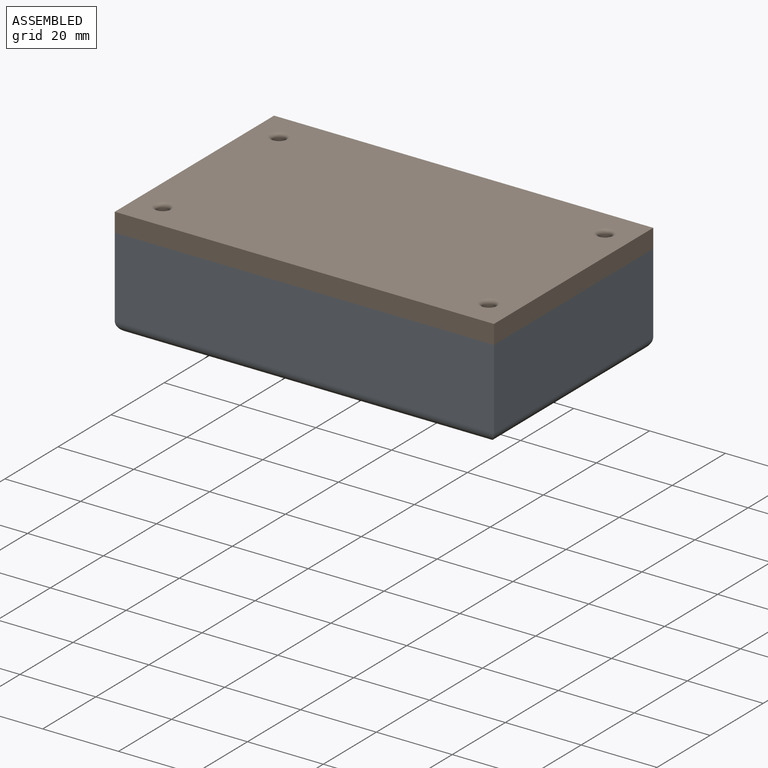
[diagram: assembled view]
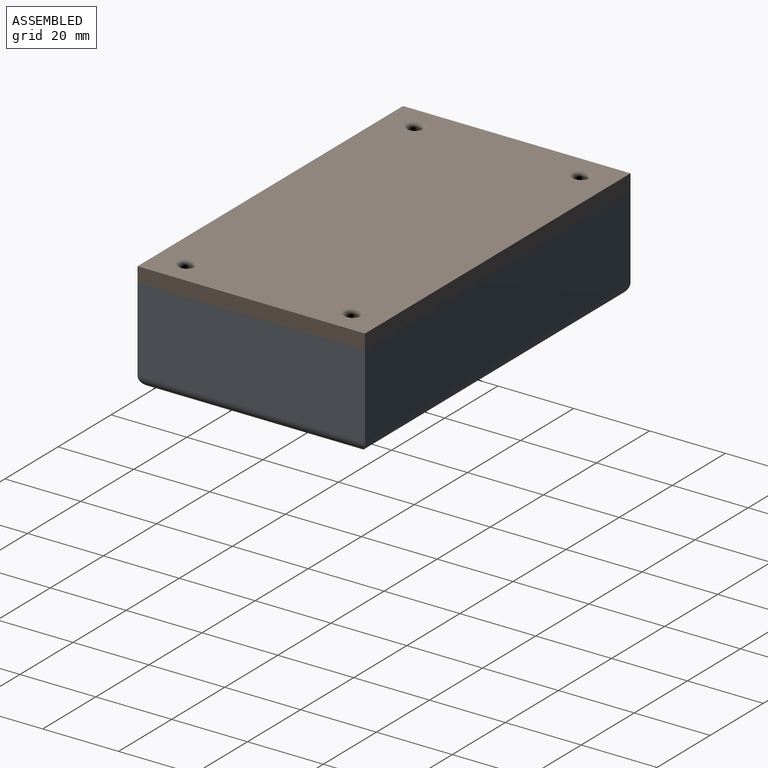
[diagram: assembled view, second angle]
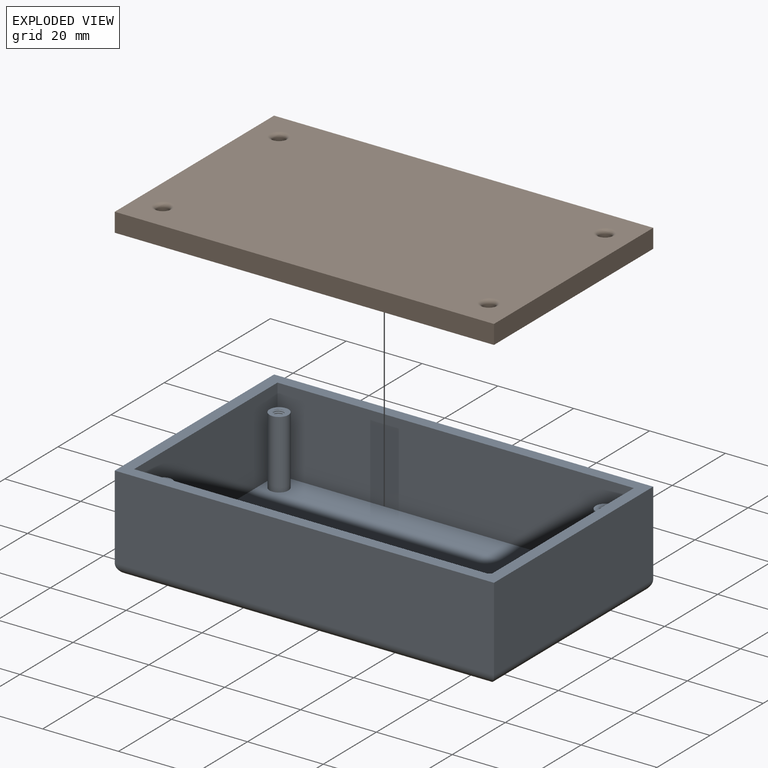
[diagram: exploded view]
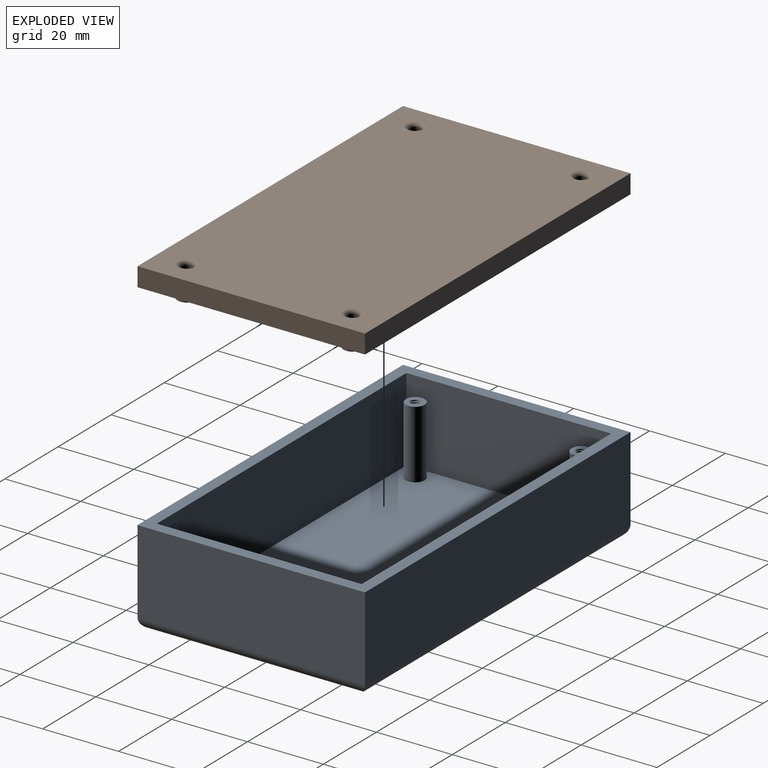
[diagram: exploded view, second angle]
FCSTD DOCUMENT  (FreeCAD 1.0R39109 (Git))
Label: Joystick_Part1
License: All rights reserved
LicenseURL: https://en.wikipedia.org/wiki/All_rights_reserved
objects: Sketcher::SketchObject×8, PartDesign::Pad×4, PartDesign::Pocket×3, PartDesign::Fillet×2, PartDesign::Body×2, App::Link×2, App::FeaturePython×2, PartDesign::Hole×1, Assembly::JointGroup×1, Assembly::AssemblyObject×1
note: 48 computed .brp shape members not serialized (recipe doc carries the construction recipe); baked Part::Feature solids carry a one-line shape summary decoded from their .brp

FEATURE [Sketcher::SketchObject] Sketch
  ArcFitTolerance = 1e-06
  AttachmentSupport = -> [XY_Plane]
  FullyConstrained = true
  MakeInternals = false
  MapMode = 5
  sketch-geometry (4):
    g0: LineSegment StartX=50 StartY=-30 StartZ=0 EndX=50 EndY=30 EndZ=0
    g1: LineSegment StartX=50 StartY=30 StartZ=0 EndX=-50 EndY=30 EndZ=0
    g2: LineSegment StartX=-50 StartY=30 StartZ=0 EndX=-50 EndY=-30 EndZ=0
    g3: LineSegment StartX=-50 StartY=-30 StartZ=0 EndX=50 EndY=-30 EndZ=0
  constraints (10):
    c: Coincident(g0,g1)
    c: Coincident(g1,g2)
    c: Coincident(g2,g3)
    c: Coincident(g3,g0)
    c: Vertical(g2)
    c: Horizontal(g3)
    c: Symmetric(g0,g1,g-2)
    c: Symmetric(g0,g0,g-1)
    c: DistanceX(g1,g1) = 100
    c: DistanceY(g0,g0) = 60
FEATURE [PartDesign::Pad] Pad
  Direction = (0,0,1)
  Length = 25
  Length2 = 10
  Profile = -> Sketch
  ReferenceAxis = -> Sketch [N_Axis]
  Refine = true
  Suppressed = false
  Type = 0
FEATURE [Sketcher::SketchObject] Sketch001
  ArcFitTolerance = 1e-06
  AttachmentSupport = -> [Pad]
  FullyConstrained = true
  MakeInternals = false
  MapMode = 5
  Placement = pos=(0,0,25) rot=(0,0,1;0rad)
  sketch-geometry (4):
    g0: LineSegment StartX=47 StartY=-27 StartZ=0 EndX=47 EndY=27 EndZ=0
    g1: LineSegment StartX=47 StartY=27 StartZ=0 EndX=-47 EndY=27 EndZ=0
    g2: LineSegment StartX=-47 StartY=27 StartZ=0 EndX=-47 EndY=-27 EndZ=0
    g3: LineSegment StartX=-47 StartY=-27 StartZ=0 EndX=47 EndY=-27 EndZ=0
  constraints (10):
    c: Coincident(g0,g1)
    c: Coincident(g1,g2)
    c: Coincident(g2,g3)
    c: Coincident(g3,g0)
    c: Vertical(g2)
    c: Horizontal(g3)
    c: Symmetric(g0,g1,g-2)
    c: Symmetric(g0,g0,g-1)
    c: DistanceX(g1,g1) = 94
    c: DistanceY(g0,g0) = 54
FEATURE [PartDesign::Pocket] Pocket
  BaseFeature = -> Pad
  Direction = (0,0,-1)
  Length = 22
  Length2 = 5
  Profile = -> Sketch001
  ReferenceAxis = -> Sketch001 [N_Axis]
  Refine = true
  Suppressed = false
  Type = 0
FEATURE [Sketcher::SketchObject] Sketch002
  ArcFitTolerance = 1e-06
  AttachmentSupport = -> [Pocket]
  ExternalGeometry = -> [Pocket]
  FullyConstrained = true
  MakeInternals = false
  MapMode = 5
  Placement = pos=(0,0,3) rot=(0,0,1;0rad)
  sketch-geometry (4):
    g0: Circle CenterX=-43 CenterY=21.8765 CenterZ=0 NormalX=0 NormalY=0 NormalZ=1 AngleXU=0 Radius=2.5
    g1: Circle CenterX=43 CenterY=21.8765 CenterZ=0 NormalX=0 NormalY=0 NormalZ=1 AngleXU=0 Radius=2.5
    g2: Circle CenterX=-43 CenterY=-21.8765 CenterZ=0 NormalX=0 NormalY=0 NormalZ=1 AngleXU=0 Radius=2.5
    g3: Circle CenterX=43 CenterY=-21.8765 CenterZ=0 NormalX=0 NormalY=0 NormalZ=1 AngleXU=0 Radius=2.5
  constraints (12):
    c: Diameter(g0) = 5
    c: DistanceX(g0,g-1) = 43
    c: Distance(g0,g-3) = 6.5
    c: Diameter(g1) = 5
    c: DistanceX(g-1,g1) = 43
    c: Distance(g1,g-4) = 6.5
    c: Diameter(g2) = 5
    c: Diameter(g3) = 5
    c: Distance(g2,g-3) = 6.5
    c: Distance(g2,g-2) = 43
    c: Distance(g3,g-4) = 6.5
    c: DistanceX(g-1,g3) = 43
FEATURE [PartDesign::Pad] Pad001
  BaseFeature = -> Pocket
  Direction = (0,0,1)
  Length = 18
  Length2 = 10
  Profile = -> Sketch002
  ReferenceAxis = -> Sketch002 [N_Axis]
  Refine = true
  Suppressed = false
  Type = 0
FEATURE [Sketcher::SketchObject] Sketch003
  ArcFitTolerance = 1e-06
  AttachmentSupport = -> [Pad001]
  ExternalGeometry = -> [Pad001]
  FullyConstrained = true
  MakeInternals = false
  MapMode = 45
  Placement = pos=(0,-1.4e-15,21) rot=(0,0,1;1.5708rad)
  sketch-geometry (4):
    g0: Circle CenterX=21.88 CenterY=-42.9956 CenterZ=0 NormalX=0 NormalY=0 NormalZ=1 AngleXU=0 Radius=1.6
    g1: Circle CenterX=-21.88 CenterY=42.9926 CenterZ=0 NormalX=0 NormalY=0 NormalZ=1 AngleXU=0 Radius=1.6
    g2: Circle CenterX=-21.88 CenterY=-42.9956 CenterZ=0 NormalX=0 NormalY=0 NormalZ=1 AngleXU=0 Radius=1.6
    g3: Circle CenterX=21.88 CenterY=43.0038 CenterZ=0 NormalX=0 NormalY=0 NormalZ=1 AngleXU=0 Radius=1.6
  constraints (12):
    c: Diameter(g0) = 3.2
    c: Diameter(g1) = 3.2
    c: Diameter(g2) = 3.2
    c: DistanceX(g-1,g0) = 21.88
    c: DistanceX(g2,g-1) = 21.88
    c: Distance(g2,g-4) = 6.5
    c: Distance(g0,g-4) = 6.5
    c: DistanceX(g-3,g1) = 5.12
    c: Diameter(g3) = 3.2
    c: DistanceX(g3,g-3) = 5.12
    c: Distance(g3,g-1) = 48.25
    c: Distance(g1,g-1) = 48.24
FEATURE [PartDesign::Hole] Hole
  BaseFeature = -> Pad001
  CustomThreadClearance = 0
  Depth = 4
  DepthType = 0
  Diameter = 2.52
  DrillForDepth = false
  DrillPoint = 0
  DrillPointAngle = 118
  HoleCutCountersinkAngle = 90
  HoleCutCustomValues = false
  HoleCutDepth = 0
  HoleCutDiameter = 6.1
  HoleCutType = 0
  ModelThread = true
  Profile = -> Sketch003
  Refine = true
  Suppressed = false
  Tapered = false
  TaperedAngle = 90
  ThreadClass = 0
  ThreadDepth = 4
  ThreadDepthType = 0
  ThreadDirection = 0
  ThreadFit = 0
  ThreadSize = 9
  ThreadType = 1
  Threaded = true
  UseCustomThreadClearance = false
FEATURE [PartDesign::Fillet] Fillet
  Base = -> Hole [Edge3,Edge6,Edge11,Edge9]
  BaseFeature = -> Hole
  Radius = 3
  Refine = true
  SupportTransform = false
  Suppressed = false
  UseAllEdges = false
FEATURE [PartDesign::Body] Body  label="BaseBody"
  AllowCompound = false
  Group = -> [Sketch,Pad,Sketch001,Pocket,Sketch002,Pad001,Sketch003,Hole,Fillet]
  Origin = -> Origin
  Tip = -> Fillet
FEATURE [Sketcher::SketchObject] Sketch004
  ArcFitTolerance = 1e-06
  AttachmentSupport = -> [XY_Plane001]
  FullyConstrained = true
  MakeInternals = false
  MapMode = 5
  sketch-geometry (4):
    g0: LineSegment StartX=50 StartY=-30 StartZ=0 EndX=50 EndY=30 EndZ=0
    g1: LineSegment StartX=50 StartY=30 StartZ=0 EndX=-50 EndY=30 EndZ=0
    g2: LineSegment StartX=-50 StartY=30 StartZ=0 EndX=-50 EndY=-30 EndZ=0
    g3: LineSegment StartX=-50 StartY=-30 StartZ=0 EndX=50 EndY=-30 EndZ=0
  constraints (10):
    c: Coincident(g0,g1)
    c: Coincident(g1,g2)
    c: Coincident(g2,g3)
    c: Coincident(g3,g0)
    c: Vertical(g2)
    c: Horizontal(g3)
    c: Distance(g0,g2) = 100
    c: Distance(g1,g3) = 60
    c: Symmetric(g0,g1,g-2)
    c: Symmetric(g0,g0,g-1)
FEATURE [PartDesign::Pad] Pad002
  Direction = (0,0,1)
  Length = 5
  Length2 = 10
  Profile = -> Sketch004
  ReferenceAxis = -> Sketch004 [N_Axis]
  Refine = true
  Suppressed = false
  Type = 0
FEATURE [Sketcher::SketchObject] Sketch005
  ArcFitTolerance = 1e-06
  AttachmentSupport = -> [Pad002]
  FullyConstrained = true
  MakeInternals = false
  MapMode = 5
  Placement = pos=(0,0,0) rot=(1,0,0;3.14159rad)
  sketch-geometry (4):
    g0: LineSegment StartX=47 StartY=-27 StartZ=0 EndX=47 EndY=27 EndZ=0
    g1: LineSegment StartX=47 StartY=27 StartZ=0 EndX=-47 EndY=27 EndZ=0
    g2: LineSegment StartX=-47 StartY=27 StartZ=0 EndX=-47 EndY=-27 EndZ=0
    g3: LineSegment StartX=-47 StartY=-27 StartZ=0 EndX=47 EndY=-27 EndZ=0
  constraints (10):
    c: Coincident(g0,g1)
    c: Coincident(g1,g2)
    c: Coincident(g2,g3)
    c: Coincident(g3,g0)
    c: Vertical(g2)
    c: Horizontal(g3)
    c: Distance(g0,g2) = 94
    c: Distance(g1,g3) = 54
    c: Symmetric(g1,g0,g-2)
    c: Symmetric(g0,g0,g-1)
FEATURE [PartDesign::Pocket] Pocket001
  BaseFeature = -> Pad002
  Direction = (0,0,1)
  Length = 3
  Length2 = 5
  Profile = -> Sketch005
  ReferenceAxis = -> Sketch005 [N_Axis]
  Refine = true
  Suppressed = false
  Type = 0
FEATURE [Sketcher::SketchObject] Sketch006
  ArcFitTolerance = 1e-06
  AttachmentSupport = -> [Pocket001]
  ExternalGeometry = -> [Pocket001]
  FullyConstrained = true
  MakeInternals = false
  MapMode = 5
  Placement = pos=(0,0,3) rot=(1,0,0;3.14159rad)
  sketch-geometry (4):
    g0: Circle CenterX=-43 CenterY=21.8765 CenterZ=0 NormalX=0 NormalY=0 NormalZ=1 AngleXU=0 Radius=2.5
    g1: Circle CenterX=-43 CenterY=-21.8765 CenterZ=0 NormalX=0 NormalY=0 NormalZ=1 AngleXU=0 Radius=2.5
    g2: Circle CenterX=43 CenterY=-21.8765 CenterZ=0 NormalX=0 NormalY=0 NormalZ=1 AngleXU=0 Radius=2.5
    g3: Circle CenterX=43 CenterY=21.8765 CenterZ=0 NormalX=0 NormalY=0 NormalZ=1 AngleXU=0 Radius=2.5
  constraints (12):
    c: Diameter(g0) = 5
    c: Diameter(g1) = 5
    c: Diameter(g2) = 5
    c: Diameter(g3) = 5
    c: DistanceX(g0,g-1) = 43
    c: Distance(g0,g-3) = 6.5
    c: DistanceX(g1,g-1) = 43
    c: Distance(g1,g-3) = 6.5
    c: DistanceX(g-1,g2) = 43
    c: Distance(g2,g-4) = 6.5
    c: DistanceX(g-1,g3) = 43
    c: Distance(g3,g-4) = 6.5
FEATURE [PartDesign::Pad] Pad003
  BaseFeature = -> Pocket001
  Direction = (0,0,-1)
  Length = 6
  Length2 = 10
  Profile = -> Sketch006
  ReferenceAxis = -> Sketch006 [N_Axis]
  Refine = true
  Suppressed = false
  Type = 0
FEATURE [Sketcher::SketchObject] Sketch007
  ArcFitTolerance = 1e-06
  AttachmentSupport = -> [Pad003]
  ExternalGeometry = -> [Pad003]
  FullyConstrained = true
  MakeInternals = false
  MapMode = 45
  Placement = pos=(0,0,-3) rot=(0,0,1;1.5708rad)
  sketch-geometry (4):
    g0: Circle CenterX=-21.8765 CenterY=43 CenterZ=0 NormalX=0 NormalY=0 NormalZ=1 AngleXU=0 Radius=1.6
    g1: Circle CenterX=21.8765 CenterY=43 CenterZ=0 NormalX=0 NormalY=0 NormalZ=1 AngleXU=0 Radius=1.6
    g2: Circle CenterX=-21.8765 CenterY=-43 CenterZ=0 NormalX=0 NormalY=0 NormalZ=1 AngleXU=0 Radius=1.6
    g3: Circle CenterX=21.8765 CenterY=-43 CenterZ=0 NormalX=0 NormalY=0 NormalZ=1 AngleXU=0 Radius=1.6
  constraints (11):
    c: Diameter(g0) = 3.2
    c: Coincident(g0,g-3)
    c: Diameter(g1) = 3.2
    c: Diameter(g3) = 3.2
    c: Diameter(g2) = 3.2
    c: Distance(g1,g-4) = 6.5
    c: DistanceY(g-1,g1) = 43
    c: DistanceY(g3,g-1) = 43
    c: Distance(g3,g-5) = 6.5
    c: Distance(g2,g-5) = 6.5
    c: DistanceY(g2,g-1) = 43
FEATURE [PartDesign::Pocket] Pocket002
  BaseFeature = -> Pad003
  Direction = (0,0,-1)
  Length = 0
  Length2 = 5
  Profile = -> Sketch007
  ReferenceAxis = -> Sketch007 [N_Axis]
  Refine = true
  Suppressed = false
  Type = 3
  UpToFace = -> Pad003 [Face5]
FEATURE [PartDesign::Fillet] Fillet001
  Base = -> Pocket002 [Edge18,Edge20,Edge19,Edge17]
  BaseFeature = -> Pocket002
  Radius = 1
  Refine = true
  SupportTransform = false
  Suppressed = false
  UseAllEdges = false
FEATURE [PartDesign::Body] Body001  label="FrontBody"
  AllowCompound = false
  Group = -> [Sketch004,Pad002,Sketch005,Pocket001,Sketch006,Pad003,Sketch007,Pocket002,Fillet001]
  Origin = -> Origin001
  Tip = -> Fillet001
FEATURE [App::Link] BaseBody  label="BaseBody001"
  LinkPlacement = pos=(0,5.00679e-06,-42) rot=(0,0,1;0rad)
  LinkedObject = -> Body
  Placement = pos=(0,5.00679e-06,-42) rot=(0,0,1;0rad)
FEATURE [App::Link] FrontBody  label="FrontBody001"
  LinkPlacement = pos=(0,5.00679e-06,-18) rot=(0,0,1;0rad)
  LinkedObject = -> Body001
  Placement = pos=(0,5.00679e-06,-18) rot=(0,0,1;0rad)
FEATURE [App::FeaturePython] GroundedJoint  # Assembly grounded joint (typed FeaturePython)
  ObjectToGround = -> BaseBody
  Placement = pos=(0,5.00679e-06,-42) rot=(0,0,1;0rad)
FEATURE [App::FeaturePython] Joint  label="Fixed"  # Assembly joint (typed FeaturePython)
  Activated = true
  AngleMax = 0
  AngleMin = 0
  Detach1 = false
  Detach2 = false
  Distance = 0
  Distance2 = 0
  EnableAngleMax = false
  EnableAngleMin = false
  EnableLengthMax = false
  EnableLengthMin = false
  JointType = 0 (Fixed)
  LengthMax = 0
  LengthMin = 0
  Placement1 = pos=(-43,-21.8765,21) rot=(0,0,1;0rad)
  Placement2 = pos=(-43,-21.8765,-3) rot=(1,0,0;3.14159rad)
  Reference1 = -> Assembly [BaseBody.Edge38,BaseBody.Edge38]
  Reference2 = -> Assembly [FrontBody.Edge48,FrontBody.Edge48]
FEATURE [Assembly::JointGroup] Joints
  Group = -> [GroundedJoint,Joint]
FEATURE [Assembly::AssemblyObject] Assembly
  Group = -> [Joints,BaseBody,FrontBody,GroundedJoint,Joint]
  Origin = -> Origin002
  Type = Assembly
